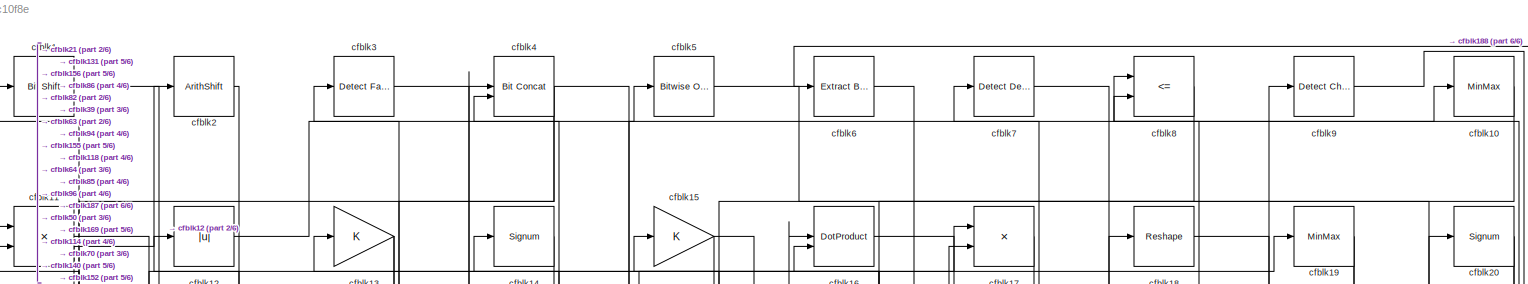
[diagram: root canvas - part 1/6, full width, top band]
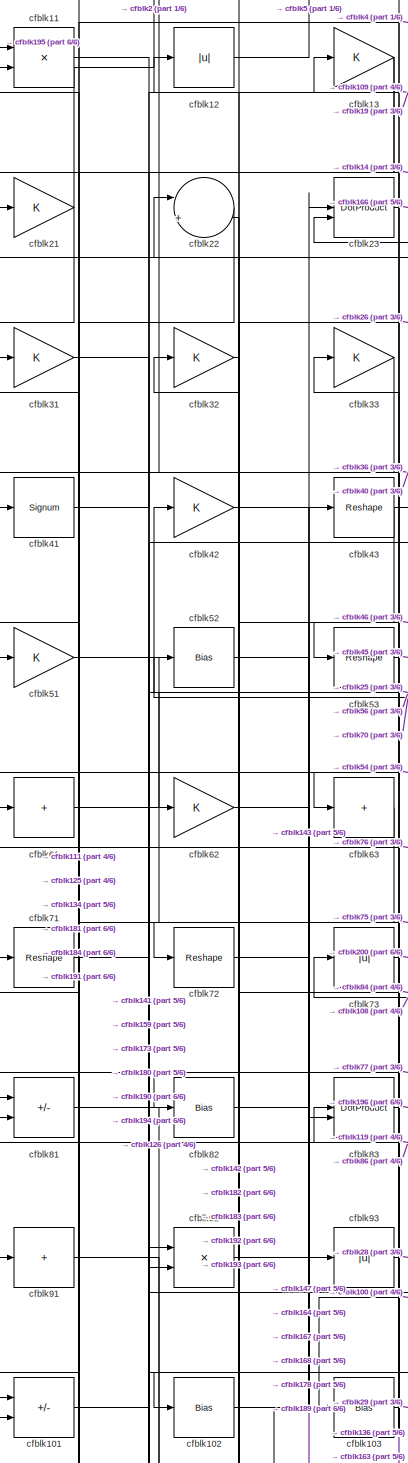
[diagram: root canvas - part 2/6, top left region]
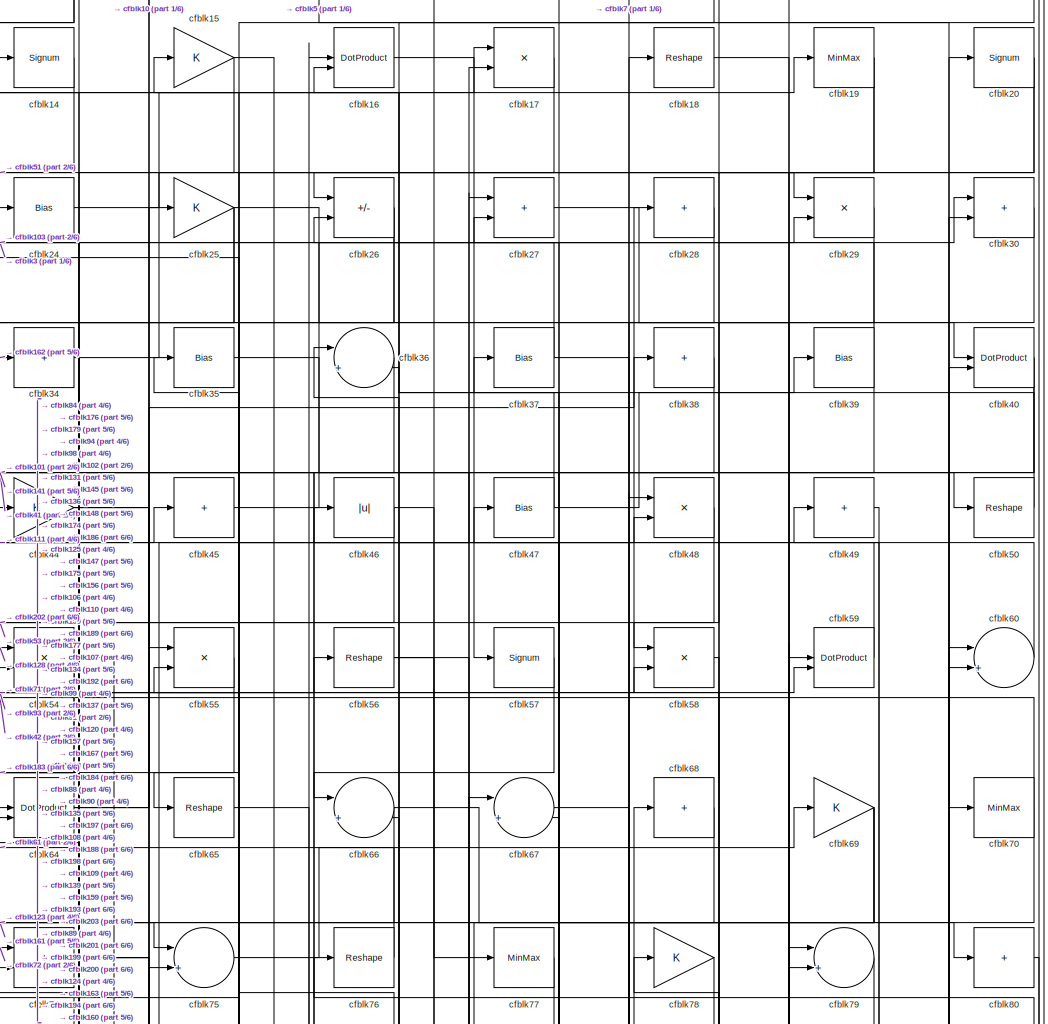
[diagram: root canvas - part 3/6, top center region]
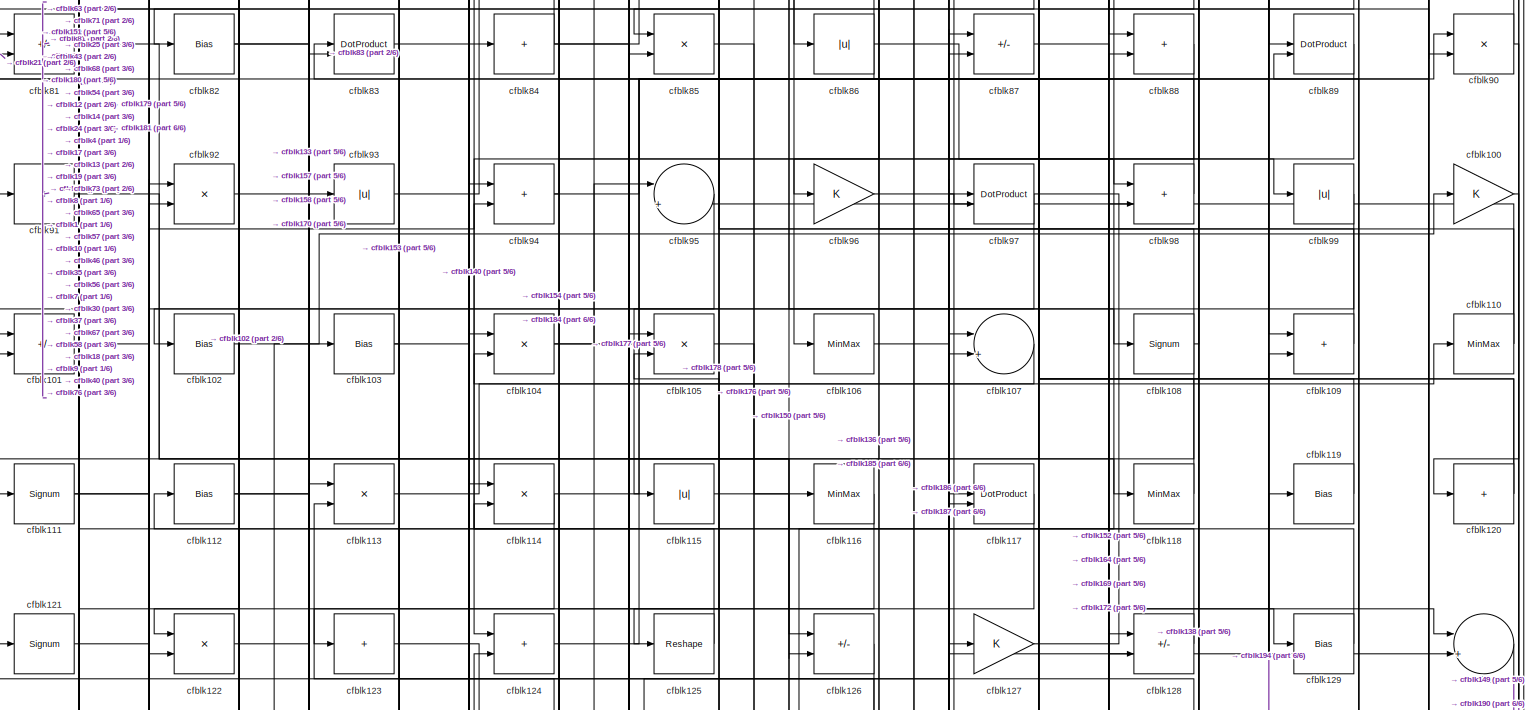
[diagram: root canvas - part 4/6, full width, middle band]
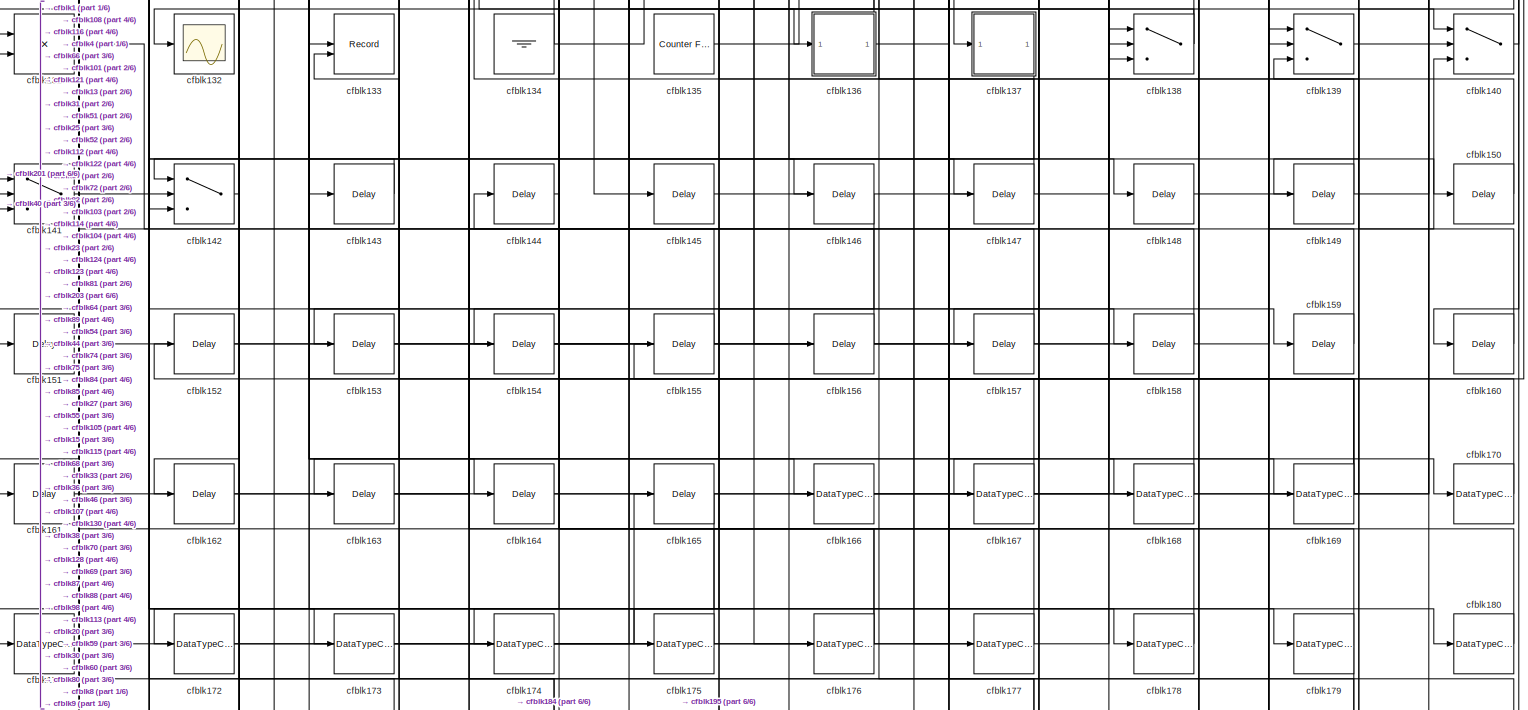
[diagram: root canvas - part 5/6, full width, bottom band]
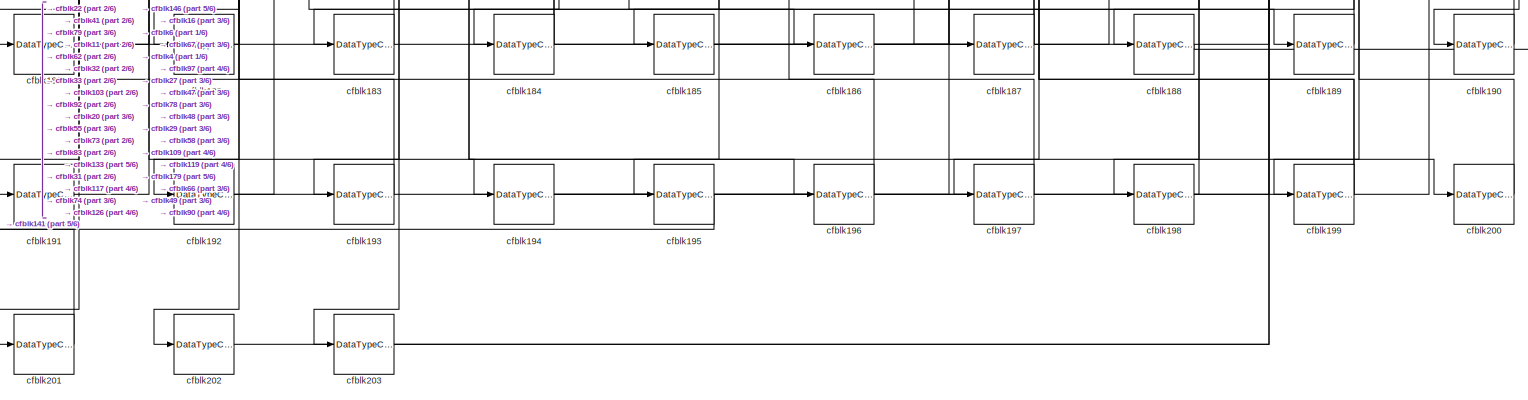
[diagram: root canvas - part 6/6, full width, bottom band]
MODEL slx_711462c10f8e
KIND model
CONFIG AbsTol = auto
CONFIG EnableMultiTasking = off
CONFIG FixedStep = auto
CONFIG MaxStep = auto
CONFIG MinStep = auto
CONFIG RelTol = 1e-3
CONFIG SampleTimeConstraint = Unconstrained
CONFIG SolverName = VariableStepAuto
CONFIG StartTime = 0.0
CONFIG StopTime = 10.0
BLOCK [Reference] cfblk1  REF=hdlsllib/Logic and Bit
Operations/Bit Shift
  SourceBlock = hdlsllib/Logic and Bit\nOperations/Bit Shift
  SourceType = Bit Shift
BLOCK [MinMax] cfblk10
BLOCK [Gain] cfblk100
BLOCK [Sum] cfblk101
  IconShape = rectangular
  Inputs = +-
BLOCK [Bias] cfblk102
  Bias = 0.0
  SaturateOnIntegerOverflow = off
BLOCK [Bias] cfblk103
  Bias = 0.0
  SaturateOnIntegerOverflow = off
BLOCK [Product] cfblk104
  Inputs = */
  RndMeth = Zero
  SaturateOnIntegerOverflow = on
BLOCK [Product] cfblk105
  Inputs = */
  RndMeth = Zero
  SaturateOnIntegerOverflow = on
BLOCK [MinMax] cfblk106
BLOCK [Sum] cfblk107
  Inputs = |++
BLOCK [Signum] cfblk108
BLOCK [Sum] cfblk109
  IconShape = rectangular
BLOCK [Product] cfblk11
  Inputs = */
  RndMeth = Zero
  SaturateOnIntegerOverflow = on
BLOCK [MinMax] cfblk110
BLOCK [Signum] cfblk111
BLOCK [Bias] cfblk112
  Bias = 0.0
  SaturateOnIntegerOverflow = off
BLOCK [Product] cfblk113
  Inputs = */
  RndMeth = Zero
  SaturateOnIntegerOverflow = on
BLOCK [Product] cfblk114
  Inputs = */
  RndMeth = Zero
  SaturateOnIntegerOverflow = on
BLOCK [Abs] cfblk115
  SaturateOnIntegerOverflow = off
BLOCK [MinMax] cfblk116
BLOCK [DotProduct] cfblk117
  OutDataTypeStr = Inherit: Inherit via internal rule
BLOCK [MinMax] cfblk118
BLOCK [Bias] cfblk119
  Bias = 0.0
  SaturateOnIntegerOverflow = off
BLOCK [Abs] cfblk12
  SaturateOnIntegerOverflow = off
BLOCK [Sum] cfblk120
  IconShape = rectangular
  Inputs = +
BLOCK [Signum] cfblk121
BLOCK [Product] cfblk122
  Inputs = */
  RndMeth = Zero
  SaturateOnIntegerOverflow = on
BLOCK [Sum] cfblk123
  IconShape = rectangular
  Inputs = +
BLOCK [Sum] cfblk124
  IconShape = rectangular
BLOCK [Reshape] cfblk125
BLOCK [Sum] cfblk126
  IconShape = rectangular
  Inputs = +-
BLOCK [Gain] cfblk127
BLOCK [Sum] cfblk128
  IconShape = rectangular
  Inputs = +-
BLOCK [Bias] cfblk129
  Bias = 0.0
  SaturateOnIntegerOverflow = off
BLOCK [Gain] cfblk13
BLOCK [Sum] cfblk130
  Inputs = |++
BLOCK [Product] cfblk131
  Inputs = */
  RndMeth = Zero
  SaturateOnIntegerOverflow = on
BLOCK [Scope] cfblk132
  Floating = off
  NumInputPorts = 1
  ScopeSpecificationString = Simulink.scopes.TimeScopeBlockCfg('CurrentConfiguration', extmgr.ConfigurationSet(extmgr.Configuration('Core','General UI',true),extmgr.Configuration('Core','Source UI',true),extmgr.Configuration('Sources','WiredSimulink',true,'DataLoggingVariableName','ScopeData2','DataLoggingSaveFormat','Array','DataLoggingLimitDataPoints',true,'DataLoggingDecimation','1'),extmgr.Configuration('Visuals','Time Do...<+868ch>
BLOCK [Record] cfblk133
  CompatibilityTag = XY
  FileSettingsInternal = {"entries":[{"content":{"excelSettings":{"content":{},"type":"Streamout.ExcelSettings"}},"type":"Streamout.FileSettingStorage","uuid":""}],"packageUris":["http:\/\/schema.mathworks.com\/mf0\/streamout_blocks\/R2020a"],"version":"1.0"}
  Layout = [1 1]
  SignalsInternal = {"entries":[{"content":{"signals":[{"content":{"blockPath":[],"dimensions":[1],"domain":"","lineColor":"#a2142f","plots":[1],"port":1,"signalID":4464,"signalName":"XY Graph:1"},"type":"RecordBlkView.Signal","uuid":""},{"content":{"blockPath":[],"dimensions":[1],"domain":"","lineColor":"#139fff","plots":[1],"port":2,"signalID":4467,"signalName":"XY Graph:2"},"type":"RecordBlkView.Signal","uuid":""}...<+146ch>
  VisualizationBindings = {"xyplotplugin":{"info":[{"series":[{"bindingParametersList":[{"parameter":"X-Axis","signalID":4464,"signalName":"XY Graph:1"},{"parameter":"Y-Axis","signalID":4467,"signalName":"XY Graph:2"}],"seriesID":65485}],"subplotID":1}]}}
  st = -1
BLOCK [Ground] cfblk134
BLOCK [Reference] cfblk135  REF=hdlsllib/Sources/Counter
Free-Running
  SourceBlock = hdlsllib/Sources/Counter\nFree-Running
  SourceType = Counter Free-Running
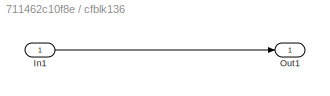
BLOCK [SubSystem] cfblk136
  LibrarySourceBlock = hdlsllib/Ports &\nSubsystems/Subsystem
BLOCK [Inport] cfblk136/In1
BLOCK [Outport] cfblk136/Out1
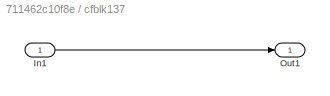
BLOCK [SubSystem] cfblk137
  LibrarySourceBlock = hdlsllib/Ports &\nSubsystems/Subsystem
BLOCK [Inport] cfblk137/In1
BLOCK [Outport] cfblk137/Out1
BLOCK [Switch] cfblk138
  InputSameDT = off
  SaturateOnIntegerOverflow = off
BLOCK [Switch] cfblk139
  InputSameDT = off
  SaturateOnIntegerOverflow = off
BLOCK [Signum] cfblk14
BLOCK [Switch] cfblk140
  InputSameDT = off
  SaturateOnIntegerOverflow = off
BLOCK [Switch] cfblk141
  InputSameDT = off
  SaturateOnIntegerOverflow = off
BLOCK [Switch] cfblk142
  InputSameDT = off
  SaturateOnIntegerOverflow = off
BLOCK [Delay] cfblk143
  InputPortMap = u0
  SampleTime = 1
BLOCK [Delay] cfblk144
  InputPortMap = u0
  SampleTime = 1
BLOCK [Delay] cfblk145
  InputPortMap = u0
  SampleTime = 1
BLOCK [Delay] cfblk146
  InputPortMap = u0
  SampleTime = 1
BLOCK [Delay] cfblk147
  InputPortMap = u0
  SampleTime = 1
BLOCK [Delay] cfblk148
  InputPortMap = u0
  SampleTime = 1
BLOCK [Delay] cfblk149
  InputPortMap = u0
  SampleTime = 1
BLOCK [Gain] cfblk15
BLOCK [Delay] cfblk150
  InputPortMap = u0
  SampleTime = 1
BLOCK [Delay] cfblk151
  InputPortMap = u0
  SampleTime = 1
BLOCK [Delay] cfblk152
  InputPortMap = u0
  SampleTime = 1
BLOCK [Delay] cfblk153
  InputPortMap = u0
  SampleTime = 1
BLOCK [Delay] cfblk154
  InputPortMap = u0
  SampleTime = 1
BLOCK [Delay] cfblk155
  InputPortMap = u0
  SampleTime = 1
BLOCK [Delay] cfblk156
  InputPortMap = u0
  SampleTime = 1
BLOCK [Delay] cfblk157
  InputPortMap = u0
  SampleTime = 1
BLOCK [Delay] cfblk158
  InputPortMap = u0
  SampleTime = 1
BLOCK [Delay] cfblk159
  InputPortMap = u0
  SampleTime = 1
BLOCK [DotProduct] cfblk16
  OutDataTypeStr = Inherit: Inherit via internal rule
BLOCK [Delay] cfblk160
  InputPortMap = u0
  SampleTime = 1
BLOCK [Delay] cfblk161
  InputPortMap = u0
  SampleTime = 1
BLOCK [Delay] cfblk162
  InputPortMap = u0
  SampleTime = 1
BLOCK [Delay] cfblk163
  InputPortMap = u0
  SampleTime = 1
BLOCK [Delay] cfblk164
  InputPortMap = u0
  SampleTime = 1
BLOCK [Delay] cfblk165
  InputPortMap = u0
  SampleTime = 1
BLOCK [DataTypeConversion] cfblk166
  OutDataTypeStr = uint8
  RndMeth = Floor
  SaturateOnIntegerOverflow = off
BLOCK [DataTypeConversion] cfblk167
  OutDataTypeStr = uint8
  RndMeth = Floor
  SaturateOnIntegerOverflow = off
BLOCK [DataTypeConversion] cfblk168
  OutDataTypeStr = uint8
  RndMeth = Floor
  SaturateOnIntegerOverflow = off
BLOCK [DataTypeConversion] cfblk169
  RndMeth = Floor
  SaturateOnIntegerOverflow = off
BLOCK [Product] cfblk17
  Inputs = */
  RndMeth = Zero
  SaturateOnIntegerOverflow = on
BLOCK [DataTypeConversion] cfblk170
  OutDataTypeStr = uint8
  RndMeth = Floor
  SaturateOnIntegerOverflow = off
BLOCK [DataTypeConversion] cfblk171
  OutDataTypeStr = uint8
  RndMeth = Floor
  SaturateOnIntegerOverflow = off
BLOCK [DataTypeConversion] cfblk172
  OutDataTypeStr = uint8
  RndMeth = Floor
  SaturateOnIntegerOverflow = off
BLOCK [DataTypeConversion] cfblk173
  OutDataTypeStr = uint8
  RndMeth = Floor
  SaturateOnIntegerOverflow = off
BLOCK [DataTypeConversion] cfblk174
  OutDataTypeStr = uint8
  RndMeth = Floor
  SaturateOnIntegerOverflow = off
BLOCK [DataTypeConversion] cfblk175
  OutDataTypeStr = uint8
  RndMeth = Floor
  SaturateOnIntegerOverflow = off
BLOCK [DataTypeConversion] cfblk176
  RndMeth = Floor
  SaturateOnIntegerOverflow = off
BLOCK [DataTypeConversion] cfblk177
  OutDataTypeStr = uint8
  RndMeth = Floor
  SaturateOnIntegerOverflow = off
BLOCK [DataTypeConversion] cfblk178
  OutDataTypeStr = uint8
  RndMeth = Floor
  SaturateOnIntegerOverflow = off
BLOCK [DataTypeConversion] cfblk179
  RndMeth = Floor
  SaturateOnIntegerOverflow = off
BLOCK [Reshape] cfblk18
BLOCK [DataTypeConversion] cfblk180
  OutDataTypeStr = uint8
  RndMeth = Floor
  SaturateOnIntegerOverflow = off
BLOCK [DataTypeConversion] cfblk181
  RndMeth = Floor
  SaturateOnIntegerOverflow = off
BLOCK [DataTypeConversion] cfblk182
  OutDataTypeStr = uint8
  RndMeth = Floor
  SaturateOnIntegerOverflow = off
BLOCK [DataTypeConversion] cfblk183
  OutDataTypeStr = uint8
  RndMeth = Floor
  SaturateOnIntegerOverflow = off
BLOCK [DataTypeConversion] cfblk184
  RndMeth = Floor
  SaturateOnIntegerOverflow = off
BLOCK [DataTypeConversion] cfblk185
  OutDataTypeStr = uint8
  RndMeth = Floor
  SaturateOnIntegerOverflow = off
BLOCK [DataTypeConversion] cfblk186
  OutDataTypeStr = uint8
  RndMeth = Floor
  SaturateOnIntegerOverflow = off
BLOCK [DataTypeConversion] cfblk187
  RndMeth = Floor
  SaturateOnIntegerOverflow = off
BLOCK [DataTypeConversion] cfblk188
  OutDataTypeStr = uint8
  RndMeth = Floor
  SaturateOnIntegerOverflow = off
BLOCK [DataTypeConversion] cfblk189
  OutDataTypeStr = uint8
  RndMeth = Floor
  SaturateOnIntegerOverflow = off
BLOCK [MinMax] cfblk19
BLOCK [DataTypeConversion] cfblk190
  OutDataTypeStr = uint8
  RndMeth = Floor
  SaturateOnIntegerOverflow = off
BLOCK [DataTypeConversion] cfblk191
  OutDataTypeStr = uint8
  RndMeth = Floor
  SaturateOnIntegerOverflow = off
BLOCK [DataTypeConversion] cfblk192
  RndMeth = Floor
  SaturateOnIntegerOverflow = off
BLOCK [DataTypeConversion] cfblk193
  OutDataTypeStr = uint8
  RndMeth = Floor
  SaturateOnIntegerOverflow = off
BLOCK [DataTypeConversion] cfblk194
  RndMeth = Floor
  SaturateOnIntegerOverflow = off
BLOCK [DataTypeConversion] cfblk195
  OutDataTypeStr = uint8
  RndMeth = Floor
  SaturateOnIntegerOverflow = off
BLOCK [DataTypeConversion] cfblk196
  OutDataTypeStr = uint8
  RndMeth = Floor
  SaturateOnIntegerOverflow = off
BLOCK [DataTypeConversion] cfblk197
  OutDataTypeStr = uint8
  RndMeth = Floor
  SaturateOnIntegerOverflow = off
BLOCK [DataTypeConversion] cfblk198
  OutDataTypeStr = uint8
  RndMeth = Floor
  SaturateOnIntegerOverflow = off
BLOCK [DataTypeConversion] cfblk199
  RndMeth = Floor
  SaturateOnIntegerOverflow = off
BLOCK [ArithShift] cfblk2
  BitShiftNumber = 8
  InputPortMap = u0
BLOCK [Signum] cfblk20
BLOCK [DataTypeConversion] cfblk200
  OutDataTypeStr = uint8
  RndMeth = Floor
  SaturateOnIntegerOverflow = off
BLOCK [DataTypeConversion] cfblk201
  OutDataTypeStr = uint8
  RndMeth = Floor
  SaturateOnIntegerOverflow = off
BLOCK [DataTypeConversion] cfblk202
  OutDataTypeStr = uint8
  RndMeth = Floor
  SaturateOnIntegerOverflow = off
BLOCK [DataTypeConversion] cfblk203
  OutDataTypeStr = uint8
  RndMeth = Floor
  SaturateOnIntegerOverflow = off
BLOCK [Gain] cfblk21
BLOCK [Sum] cfblk22
  Inputs = |++
BLOCK [DotProduct] cfblk23
  OutDataTypeStr = Inherit: Inherit via internal rule
BLOCK [Bias] cfblk24
  Bias = 0.0
  SaturateOnIntegerOverflow = off
BLOCK [Gain] cfblk25
BLOCK [Sum] cfblk26
  IconShape = rectangular
  Inputs = +-
BLOCK [Sum] cfblk27
  IconShape = rectangular
BLOCK [Sum] cfblk28
  IconShape = rectangular
  Inputs = +
BLOCK [Product] cfblk29
  Inputs = */
  RndMeth = Zero
  SaturateOnIntegerOverflow = on
BLOCK [Reference] cfblk3  REF=hdlsllib/Logic and Bit
Operations/Detect Fall
Negative
  SourceBlock = hdlsllib/Logic and Bit\nOperations/Detect Fall\nNegative
  SourceType = Detect Fall Negative
BLOCK [Sum] cfblk30
  IconShape = rectangular
BLOCK [Gain] cfblk31
BLOCK [Gain] cfblk32
BLOCK [Gain] cfblk33
BLOCK [Sum] cfblk34
  IconShape = rectangular
  Inputs = +
BLOCK [Bias] cfblk35
  Bias = 0.0
  SaturateOnIntegerOverflow = off
BLOCK [Sum] cfblk36
  Inputs = |++
BLOCK [Bias] cfblk37
  Bias = 0.0
  SaturateOnIntegerOverflow = off
BLOCK [Sum] cfblk38
  IconShape = rectangular
  Inputs = +
BLOCK [Bias] cfblk39
  Bias = 0.0
  SaturateOnIntegerOverflow = off
BLOCK [Reference] cfblk4  REF=hdlsllib/Logic and Bit
Operations/Bit Concat
  SourceBlock = hdlsllib/Logic and Bit\nOperations/Bit Concat
  SourceType = Bit Concat
BLOCK [DotProduct] cfblk40
  OutDataTypeStr = Inherit: Inherit via internal rule
BLOCK [Signum] cfblk41
BLOCK [Gain] cfblk42
BLOCK [Reshape] cfblk43
BLOCK [Gain] cfblk44
BLOCK [Sum] cfblk45
  IconShape = rectangular
  Inputs = +
BLOCK [Abs] cfblk46
  SaturateOnIntegerOverflow = off
BLOCK [Bias] cfblk47
  Bias = 0.0
  SaturateOnIntegerOverflow = off
BLOCK [Product] cfblk48
  Inputs = */
  RndMeth = Zero
  SaturateOnIntegerOverflow = on
BLOCK [Sum] cfblk49
  IconShape = rectangular
  Inputs = +
BLOCK [Reference] cfblk5  REF=simulink/Logic and Bit
Operations/Bitwise
Operator
  LibrarySourceBlock = hdlsllib/Logic and Bit\nOperations/Bitwise\nOperator
  SourceBlock = simulink/Logic and Bit\nOperations/Bitwise\nOperator
  SourceType = Bitwise Operator
BLOCK [Reshape] cfblk50
BLOCK [Gain] cfblk51
BLOCK [Bias] cfblk52
  Bias = 0.0
  SaturateOnIntegerOverflow = off
BLOCK [Reshape] cfblk53
BLOCK [Product] cfblk54
  Inputs = */
  RndMeth = Zero
  SaturateOnIntegerOverflow = on
BLOCK [Product] cfblk55
  Inputs = */
  RndMeth = Zero
  SaturateOnIntegerOverflow = on
BLOCK [Reshape] cfblk56
BLOCK [Signum] cfblk57
BLOCK [Product] cfblk58
  Inputs = */
  RndMeth = Zero
  SaturateOnIntegerOverflow = on
BLOCK [DotProduct] cfblk59
  OutDataTypeStr = Inherit: Inherit via internal rule
BLOCK [Reference] cfblk6  REF=simulink/Logic and Bit
Operations/Extract Bits
  LibrarySourceBlock = hdlsllib/Logic and Bit\nOperations/Extract Bits
  SourceBlock = simulink/Logic and Bit\nOperations/Extract Bits
  SourceType = Extract Bits
BLOCK [Sum] cfblk60
  Inputs = |++
BLOCK [Sum] cfblk61
  IconShape = rectangular
  Inputs = +
BLOCK [Gain] cfblk62
BLOCK [Sum] cfblk63
  IconShape = rectangular
  Inputs = +
BLOCK [DotProduct] cfblk64
  OutDataTypeStr = Inherit: Inherit via internal rule
BLOCK [Reshape] cfblk65
BLOCK [Sum] cfblk66
  Inputs = |++
BLOCK [Sum] cfblk67
  Inputs = |++
BLOCK [Sum] cfblk68
  IconShape = rectangular
  Inputs = +
BLOCK [Gain] cfblk69
BLOCK [Reference] cfblk7  REF=simulink/Logic and Bit
Operations/Detect
Decrease
  LibrarySourceBlock = hdlsllib/Logic and Bit\nOperations/Detect\nDecrease
  SourceBlock = simulink/Logic and Bit\nOperations/Detect\nDecrease
  SourceType = Detect Decrease
BLOCK [MinMax] cfblk70
BLOCK [Reshape] cfblk71
BLOCK [Reshape] cfblk72
BLOCK [Abs] cfblk73
  SaturateOnIntegerOverflow = off
BLOCK [Sum] cfblk74
  IconShape = rectangular
BLOCK [Sum] cfblk75
  Inputs = |++
BLOCK [Reshape] cfblk76
BLOCK [MinMax] cfblk77
BLOCK [Gain] cfblk78
BLOCK [Sum] cfblk79
  Inputs = |++
BLOCK [RelationalOperator] cfblk8
  InputSameDT = off
  Operator = <=
  OutDataTypeStr = boolean
BLOCK [Sum] cfblk80
  IconShape = rectangular
  Inputs = +
BLOCK [Sum] cfblk81
  IconShape = rectangular
  Inputs = +-
BLOCK [Bias] cfblk82
  Bias = 0.0
  SaturateOnIntegerOverflow = off
BLOCK [DotProduct] cfblk83
  OutDataTypeStr = Inherit: Inherit via internal rule
BLOCK [Sum] cfblk84
  IconShape = rectangular
  Inputs = +
BLOCK [Product] cfblk85
  Inputs = */
  RndMeth = Zero
  SaturateOnIntegerOverflow = on
BLOCK [Abs] cfblk86
  SaturateOnIntegerOverflow = off
BLOCK [Sum] cfblk87
  IconShape = rectangular
  Inputs = +-
BLOCK [Sum] cfblk88
  IconShape = rectangular
BLOCK [DotProduct] cfblk89
  OutDataTypeStr = Inherit: Inherit via internal rule
BLOCK [Reference] cfblk9  REF=simulink/Logic and Bit
Operations/Detect
Change
  LibrarySourceBlock = hdlsllib/Logic and Bit\nOperations/Detect\nChange
  SourceBlock = simulink/Logic and Bit\nOperations/Detect\nChange
  SourceType = Detect Change
BLOCK [Product] cfblk90
  Inputs = */
  RndMeth = Zero
  SaturateOnIntegerOverflow = on
BLOCK [Sum] cfblk91
  IconShape = rectangular
  Inputs = +
BLOCK [Product] cfblk92
  Inputs = */
  RndMeth = Zero
  SaturateOnIntegerOverflow = on
BLOCK [Abs] cfblk93
  SaturateOnIntegerOverflow = off
BLOCK [Sum] cfblk94
  IconShape = rectangular
BLOCK [Sum] cfblk95
  Inputs = |++
BLOCK [Gain] cfblk96
BLOCK [DotProduct] cfblk97
  OutDataTypeStr = Inherit: Inherit via internal rule
BLOCK [Sum] cfblk98
  IconShape = rectangular
BLOCK [Abs] cfblk99
  SaturateOnIntegerOverflow = off
LINE cfblk100:1 -> cfblk120:1
LINE cfblk101:1 -> cfblk180:1
LINE cfblk102:1 -> cfblk100:1
NET cfblk103:1 -> cfblk163:1, cfblk29:2
NET cfblk104:1 -> cfblk90:1, cfblk95:1
LINE cfblk105:1 -> cfblk176:1
LINE cfblk106:1 -> cfblk127:1
LINE cfblk107:1 -> cfblk104:2
NET cfblk108:1 -> cfblk171:1, cfblk58:2, cfblk73:1
LINE cfblk109:1 -> cfblk13:1
LINE cfblk10:1 -> cfblk96:1
NET cfblk110:1 -> cfblk46:1, cfblk95:2
NET cfblk111:1 -> cfblk48:2, cfblk94:2
NET cfblk112:1 -> cfblk133:1, cfblk170:1
LINE cfblk113:1 -> cfblk110:1
NET cfblk114:1 -> cfblk153:1, cfblk9:1
LINE cfblk115:1 -> cfblk150:1
LINE cfblk116:1 -> cfblk151:1
LINE cfblk117:1 -> cfblk184:1
LINE cfblk118:1 -> cfblk7:1
LINE cfblk119:1 -> cfblk83:1
LINE cfblk11:1 -> cfblk194:1
NET cfblk120:1 -> cfblk37:1, cfblk67:2
LINE cfblk121:1 -> cfblk179:1
LINE cfblk122:1 -> cfblk158:1
LINE cfblk123:1 -> cfblk140:1
LINE cfblk124:1 -> cfblk40:2
LINE cfblk125:1 -> cfblk71:1
LINE cfblk126:1 -> cfblk185:1
LINE cfblk127:1 -> cfblk129:1
LINE cfblk128:1 -> cfblk54:1
LINE cfblk129:1 -> cfblk112:1
LINE cfblk12:1 -> cfblk5:1
LINE cfblk130:1 -> cfblk149:1
LINE cfblk131:1 -> cfblk140:3
NET cfblk134:1 -> cfblk27:1, cfblk81:1
LINE cfblk135:1 -> cfblk68:1
LINE cfblk136/In1:1 -> cfblk136/Out1:1
NET cfblk136:1 -> cfblk130:2, cfblk33:1
LINE cfblk137/In1:1 -> cfblk137/Out1:1
LINE cfblk137:1 -> cfblk142:1
NET cfblk138:1 -> cfblk113:2, cfblk132:1
LINE cfblk139:1 -> cfblk60:2
NET cfblk13:1 -> cfblk141:2, cfblk142:3
LINE cfblk140:1 -> cfblk8:1
LINE cfblk141:1 -> cfblk146:1
LINE cfblk142:1 -> cfblk52:1
LINE cfblk143:1 -> cfblk142:2
LINE cfblk144:1 -> cfblk174:1
LINE cfblk145:1 -> cfblk138:1
LINE cfblk146:1 -> cfblk195:1
LINE cfblk147:1 -> cfblk55:2
LINE cfblk148:1 -> cfblk60:1
LINE cfblk149:1 -> cfblk124:2
LINE cfblk14:1 -> cfblk51:1
LINE cfblk150:1 -> cfblk36:2
LINE cfblk151:1 -> cfblk85:2
LINE cfblk152:1 -> cfblk128:1
LINE cfblk153:1 -> cfblk107:2
LINE cfblk154:1 -> cfblk139:1
LINE cfblk155:1 -> cfblk4:2
LINE cfblk156:1 -> cfblk1:1
LINE cfblk157:1 -> cfblk113:1
LINE cfblk158:1 -> cfblk104:1
LINE cfblk159:1 -> cfblk59:1
NET cfblk15:1 -> cfblk156:1, cfblk64:1
LINE cfblk160:1 -> cfblk139:3
LINE cfblk161:1 -> cfblk74:2
LINE cfblk162:1 -> cfblk54:2
LINE cfblk163:1 -> cfblk30:2
LINE cfblk164:1 -> cfblk88:2
LINE cfblk165:1 -> cfblk172:1
LINE cfblk166:1 -> cfblk140:2
LINE cfblk167:1 -> cfblk23:1
LINE cfblk168:1 -> cfblk23:2
NET cfblk169:1 -> cfblk114:2, cfblk155:1, cfblk89:2, cfblk8:2
LINE cfblk16:1 -> cfblk57:1
LINE cfblk170:1 -> cfblk87:1
LINE cfblk171:1 -> cfblk87:2
LINE cfblk172:1 -> cfblk98:2
LINE cfblk173:1 -> cfblk165:1
LINE cfblk174:1 -> cfblk75:2
LINE cfblk175:1 -> cfblk144:1
NET cfblk176:1 -> cfblk114:1, cfblk64:2
LINE cfblk177:1 -> cfblk105:1
LINE cfblk178:1 -> cfblk105:2
NET cfblk179:1 -> cfblk203:1, cfblk44:1
LINE cfblk17:1 -> cfblk26:1
LINE cfblk180:1 -> cfblk121:1
NET cfblk181:1 -> cfblk119:1, cfblk62:1
LINE cfblk182:1 -> cfblk22:1
LINE cfblk183:1 -> cfblk22:2
NET cfblk184:1 -> cfblk133:2, cfblk31:1, cfblk48:1
LINE cfblk185:1 -> cfblk117:1
LINE cfblk186:1 -> cfblk117:2
NET cfblk187:1 -> cfblk4:1, cfblk97:1
LINE cfblk188:1 -> cfblk6:1
LINE cfblk189:1 -> cfblk66:2
LINE cfblk18:1 -> cfblk109:1
LINE cfblk190:1 -> cfblk92:1
LINE cfblk191:1 -> cfblk92:2
NET cfblk192:1 -> cfblk103:1, cfblk67:1
LINE cfblk193:1 -> cfblk32:1
NET cfblk194:1 -> cfblk109:2, cfblk20:1
LINE cfblk195:1 -> cfblk11:1
LINE cfblk196:1 -> cfblk11:2
LINE cfblk197:1 -> cfblk16:1
LINE cfblk198:1 -> cfblk78:1
NET cfblk199:1 -> cfblk27:2, cfblk47:1
NET cfblk19:1 -> cfblk125:1, cfblk58:1
LINE cfblk1:1 -> cfblk86:1
LINE cfblk200:1 -> cfblk49:1
LINE cfblk201:1 -> cfblk141:1
LINE cfblk202:1 -> cfblk79:1
LINE cfblk203:1 -> cfblk79:2
NET cfblk20:1 -> cfblk139:2, cfblk193:1
NET cfblk21:1 -> cfblk101:2, cfblk2:1
LINE cfblk22:1 -> cfblk181:1
LINE cfblk23:1 -> cfblk166:1
LINE cfblk24:1 -> cfblk29:1
NET cfblk25:1 -> cfblk162:1, cfblk34:1, cfblk89:1
NET cfblk26:1 -> cfblk72:1, cfblk74:1
LINE cfblk27:1 -> cfblk40:1
LINE cfblk28:1 -> cfblk65:1
LINE cfblk29:1 -> cfblk198:1
LINE cfblk2:1 -> cfblk82:1
LINE cfblk30:1 -> cfblk128:2
LINE cfblk31:1 -> cfblk159:1
LINE cfblk32:1 -> cfblk192:1
LINE cfblk33:1 -> cfblk182:1
LINE cfblk34:1 -> cfblk17:1
LINE cfblk35:1 -> cfblk107:1
LINE cfblk36:1 -> cfblk41:1
NET cfblk37:1 -> cfblk26:2, cfblk88:1
LINE cfblk38:1 -> cfblk157:1
NET cfblk39:1 -> cfblk3:1, cfblk66:1
LINE cfblk3:1 -> cfblk94:1
NET cfblk40:1 -> cfblk101:1, cfblk141:3
NET cfblk41:1 -> cfblk191:1, cfblk19:1
LINE cfblk42:1 -> cfblk93:1
NET cfblk43:1 -> cfblk83:2, cfblk84:1
NET cfblk44:1 -> cfblk136:1, cfblk55:1
LINE cfblk45:1 -> cfblk30:1
NET cfblk46:1 -> cfblk177:1, cfblk53:1
NET cfblk47:1 -> cfblk16:2, cfblk39:1
LINE cfblk48:1 -> cfblk202:1
LINE cfblk49:1 -> cfblk199:1
NET cfblk4:1 -> cfblk118:1, cfblk131:1, cfblk63:1
LINE cfblk50:1 -> cfblk15:1
NET cfblk51:1 -> cfblk173:1, cfblk75:1
LINE cfblk52:1 -> cfblk143:1
LINE cfblk53:1 -> cfblk45:1
NET cfblk54:1 -> cfblk102:1, cfblk131:2, cfblk145:1
LINE cfblk55:1 -> cfblk183:1
NET cfblk56:1 -> cfblk77:1, cfblk99:1
LINE cfblk57:1 -> cfblk106:1
LINE cfblk58:1 -> cfblk188:1
LINE cfblk59:1 -> cfblk36:1
LINE cfblk5:1 -> cfblk70:1
LINE cfblk60:1 -> cfblk35:1
LINE cfblk61:1 -> cfblk25:1
NET cfblk62:1 -> cfblk164:1, cfblk168:1
LINE cfblk63:1 -> cfblk111:1
NET cfblk64:1 -> cfblk10:1, cfblk38:1
LINE cfblk65:1 -> cfblk108:1
NET cfblk66:1 -> cfblk161:1, cfblk80:1
LINE cfblk67:1 -> cfblk90:2
LINE cfblk68:1 -> cfblk123:1
NET cfblk69:1 -> cfblk137:1, cfblk138:3, cfblk175:1
LINE cfblk6:1 -> cfblk187:1
NET cfblk70:1 -> cfblk167:1, cfblk42:1
LINE cfblk71:1 -> cfblk56:1
LINE cfblk72:1 -> cfblk147:1
LINE cfblk73:1 -> cfblk200:1
NET cfblk74:1 -> cfblk148:1, cfblk186:1, cfblk59:2
LINE cfblk75:1 -> cfblk69:1
LINE cfblk76:1 -> cfblk61:1
LINE cfblk77:1 -> cfblk91:1
LINE cfblk78:1 -> cfblk197:1
LINE cfblk79:1 -> cfblk201:1
LINE cfblk7:1 -> cfblk50:1
LINE cfblk80:1 -> cfblk160:1
LINE cfblk81:1 -> cfblk126:2
NET cfblk82:1 -> cfblk178:1, cfblk43:1
LINE cfblk83:1 -> cfblk196:1
NET cfblk84:1 -> cfblk12:1, cfblk138:2, cfblk17:2
LINE cfblk85:1 -> cfblk116:1
NET cfblk86:1 -> cfblk21:1, cfblk81:2, cfblk98:1
LINE cfblk87:1 -> cfblk169:1
LINE cfblk88:1 -> cfblk124:1
LINE cfblk89:1 -> cfblk154:1
LINE cfblk8:1 -> cfblk85:1
NET cfblk90:1 -> cfblk190:1, cfblk76:1
LINE cfblk91:1 -> cfblk126:1
LINE cfblk92:1 -> cfblk189:1
LINE cfblk93:1 -> cfblk28:1
NET cfblk94:1 -> cfblk18:1, cfblk24:1
LINE cfblk95:1 -> cfblk122:2
LINE cfblk96:1 -> cfblk97:2
NET cfblk97:1 -> cfblk115:1, cfblk130:1
LINE cfblk98:1 -> cfblk14:1
LINE cfblk99:1 -> cfblk122:1
LINE cfblk9:1 -> cfblk152:1
note: NET lines group one-source signal fan-out (src -> all destinations, sorted); 1:1 wires keep LINE
